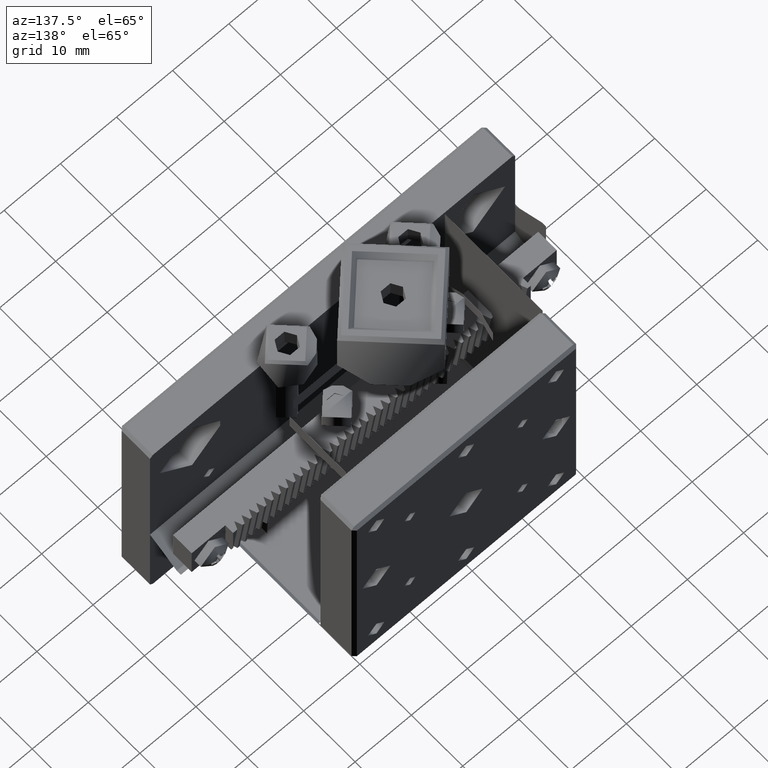
[diagram: clean part render]
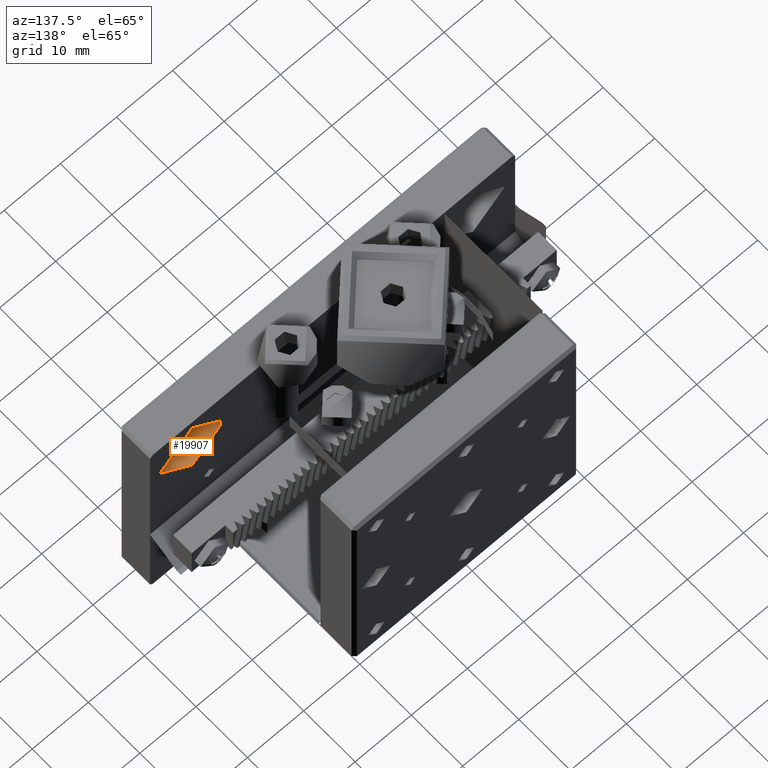
[diagram: same view with one face highlighted and labeled with its STEP entity id]
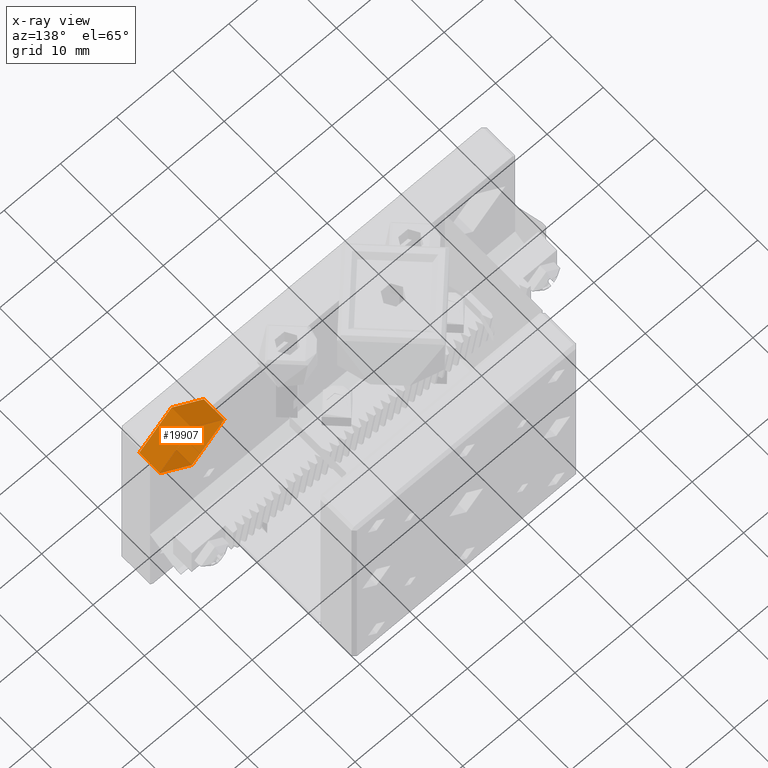
[diagram: x-ray of the same camera — body ghosted, the highlighted face saturated]
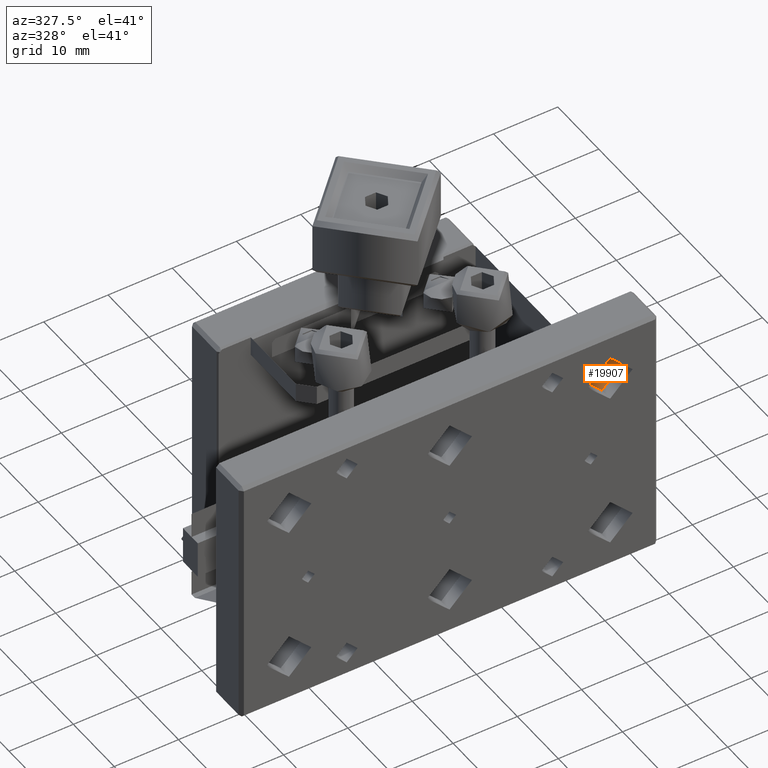
[diagram: same view with one face highlighted and labeled with its STEP entity id]
A machine part, auxiliary view. The second image highlights one B-rep face of the part: STEP entity #19907.
The next image is the same camera in x-ray: the body ghosted, the highlighted face saturated — about 0% of this face is hidden behind the body in this view.
A second angle (auxiliary view) of the same face is appended — the face is thin or edge-on in the first view.
In plain terms, the highlighted cylindrical surface (bore or boss wall) has radius 5.75 mm, axis along (0, 1, 0).
Its self-contained STEP definition (entity closure, byte-faithful):
#4315 = CIRCLE ( 'NONE', #20879, 5.750000000000000000 ) ;
#4774 = VERTEX_POINT ( 'NONE', #9855 ) ;
#5075 = EDGE_LOOP ( 'NONE', ( #10691 ) ) ;
#5503 = DIRECTION ( 'NONE',  ( 0.000000000000000000, 1.000000000000000000, 0.000000000000000000 ) ) ;
#5925 = DIRECTION ( 'NONE',  ( 0.000000000000000000, 1.000000000000000000, 0.000000000000000000 ) ) ;
#6644 = DIRECTION ( 'NONE',  ( 0.000000000000000000, 1.000000000000000000, 0.000000000000000000 ) ) ;
#7319 = FACE_OUTER_BOUND ( 'NONE', #12917, .T. ) ;
#8740 = CARTESIAN_POINT ( 'NONE',  ( 45.61330177514792439, 13.55204733727810229, 12.49999999999999467 ) ) ;
#9070 = CIRCLE ( 'NONE', #12525, 5.750000000000000000 ) ;
#9855 = CARTESIAN_POINT ( 'NONE',  ( 45.61330177514792439, 9.552047337278102290, 18.24999999999999645 ) ) ;
#10574 = CARTESIAN_POINT ( 'NONE',  ( 45.61330177514792439, 9.552047337278102290, 12.49999999999999467 ) ) ;
#10691 = ORIENTED_EDGE ( 'NONE', *, *, #18403, .F. ) ;
#11885 = DIRECTION ( 'NONE',  ( 0.000000000000000000, 0.000000000000000000, 1.000000000000000000 ) ) ;
#12202 = FACE_OUTER_BOUND ( 'NONE', #5075, .T. ) ;
#12525 = AXIS2_PLACEMENT_3D ( 'NONE', #8740, #5503, #11885 ) ;
#12917 = EDGE_LOOP ( 'NONE', ( #13413 ) ) ;
#13413 = ORIENTED_EDGE ( 'NONE', *, *, #14791, .T. ) ;
#13670 = DIRECTION ( 'NONE',  ( 0.000000000000000000, 0.000000000000000000, 1.000000000000000000 ) ) ;
#13787 = CARTESIAN_POINT ( 'NONE',  ( 45.61330177514792439, 13.55204733727810229, 18.24999999999999645 ) ) ;
#14254 = DIRECTION ( 'NONE',  ( 0.000000000000000000, 0.000000000000000000, 1.000000000000000000 ) ) ;
#14791 = EDGE_CURVE ( 'NONE', #16937, #16937, #9070, .T. ) ;
#15020 = AXIS2_PLACEMENT_3D ( 'NONE', #10574, #5925, #14254 ) ;
#16608 = CARTESIAN_POINT ( 'NONE',  ( 45.61330177514792439, 9.552047337278102290, 12.49999999999999467 ) ) ;
#16937 = VERTEX_POINT ( 'NONE', #13787 ) ;
#18403 = EDGE_CURVE ( 'NONE', #4774, #4774, #4315, .T. ) ;
#18826 = CYLINDRICAL_SURFACE ( 'NONE', #15020, 5.750000000000000000 ) ;
#19907 = ADVANCED_FACE ( 'NONE', ( #7319, #12202 ), #18826, .F. ) ;
#20879 = AXIS2_PLACEMENT_3D ( 'NONE', #16608, #6644, #13670 ) ;